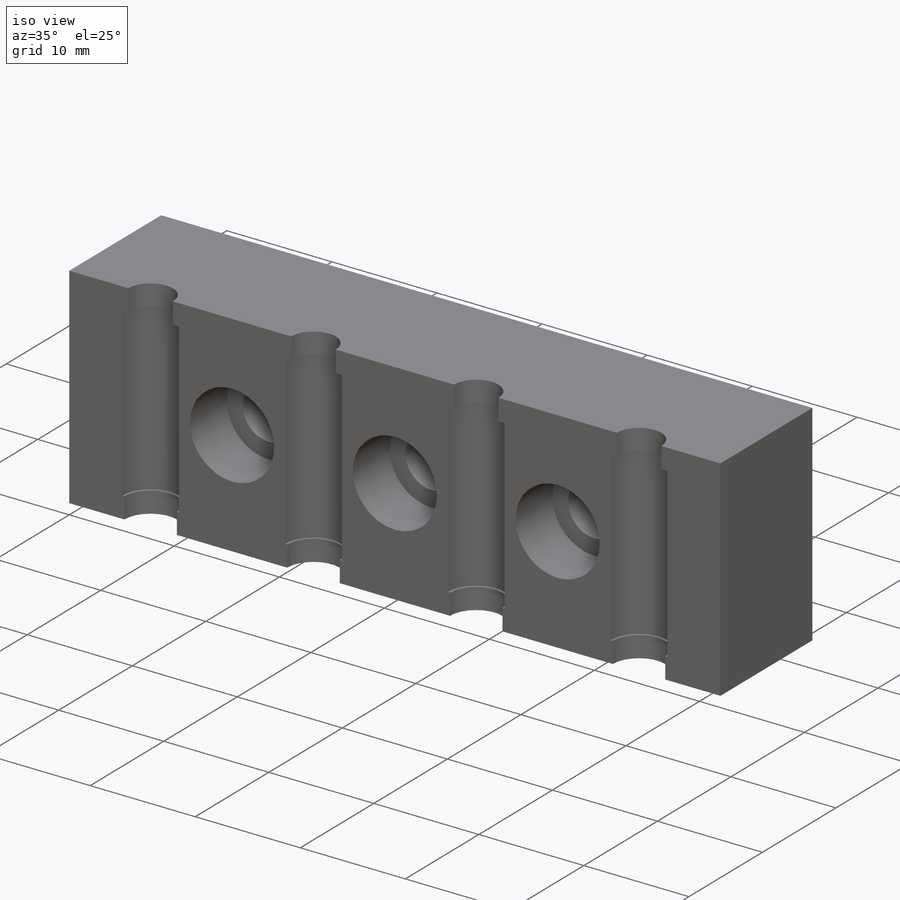
[diagram: iso view]
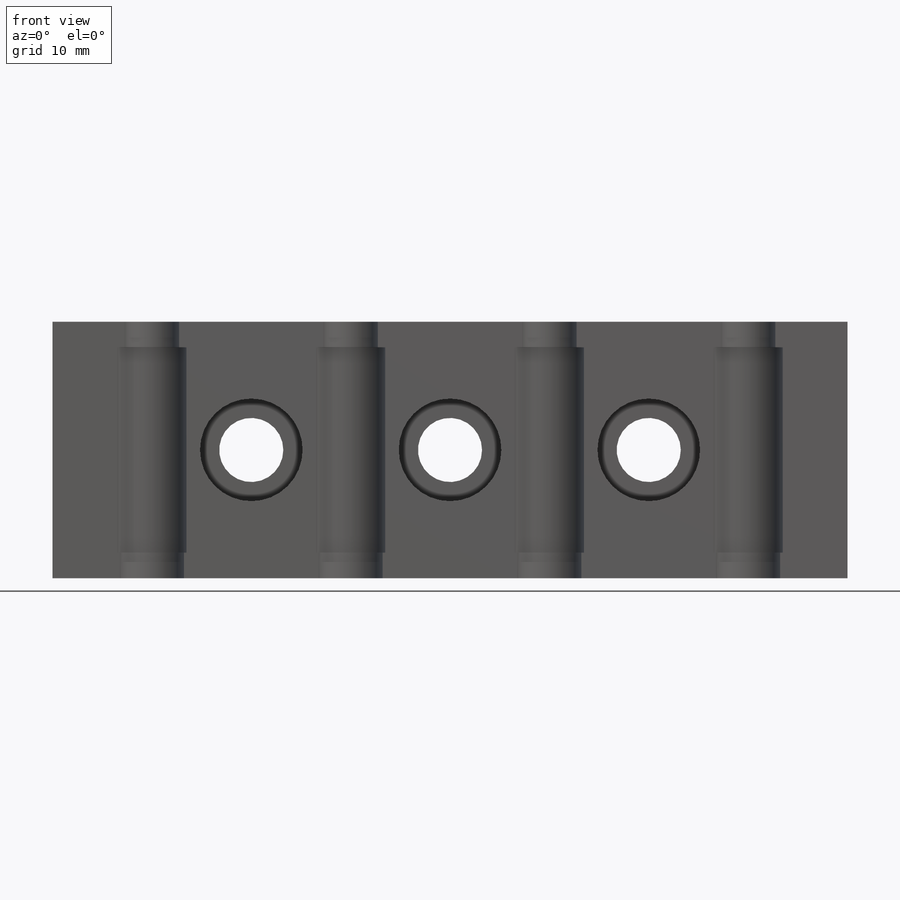
[diagram: front view]
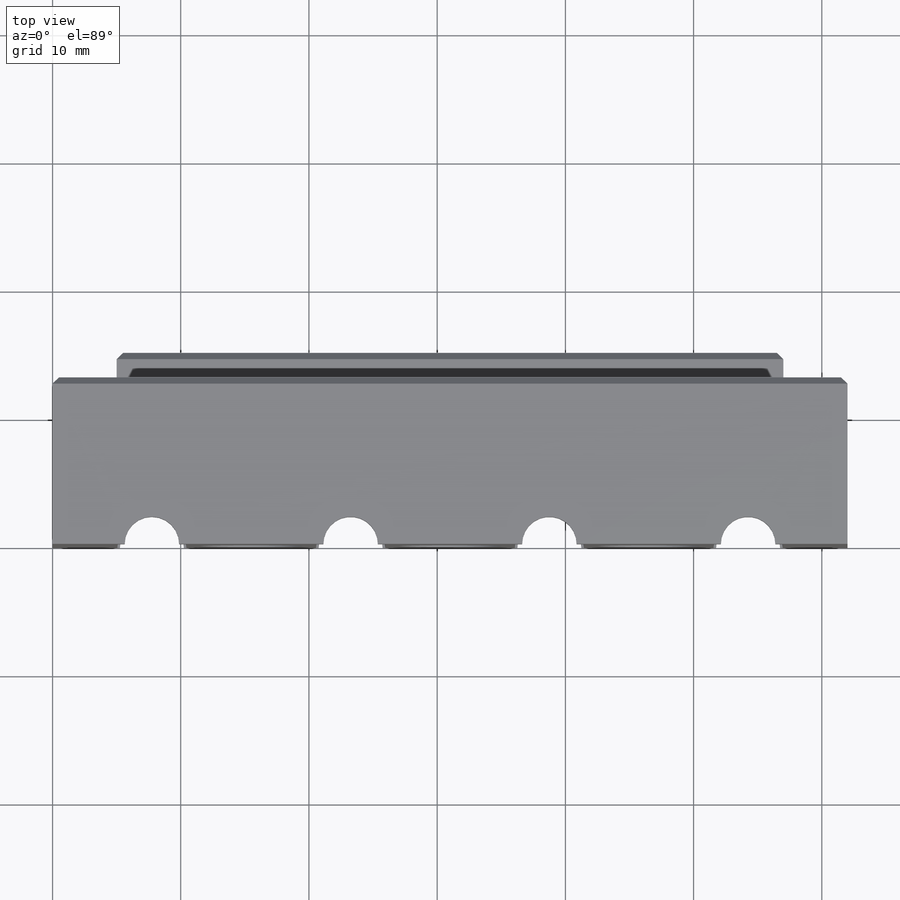
[diagram: top view]
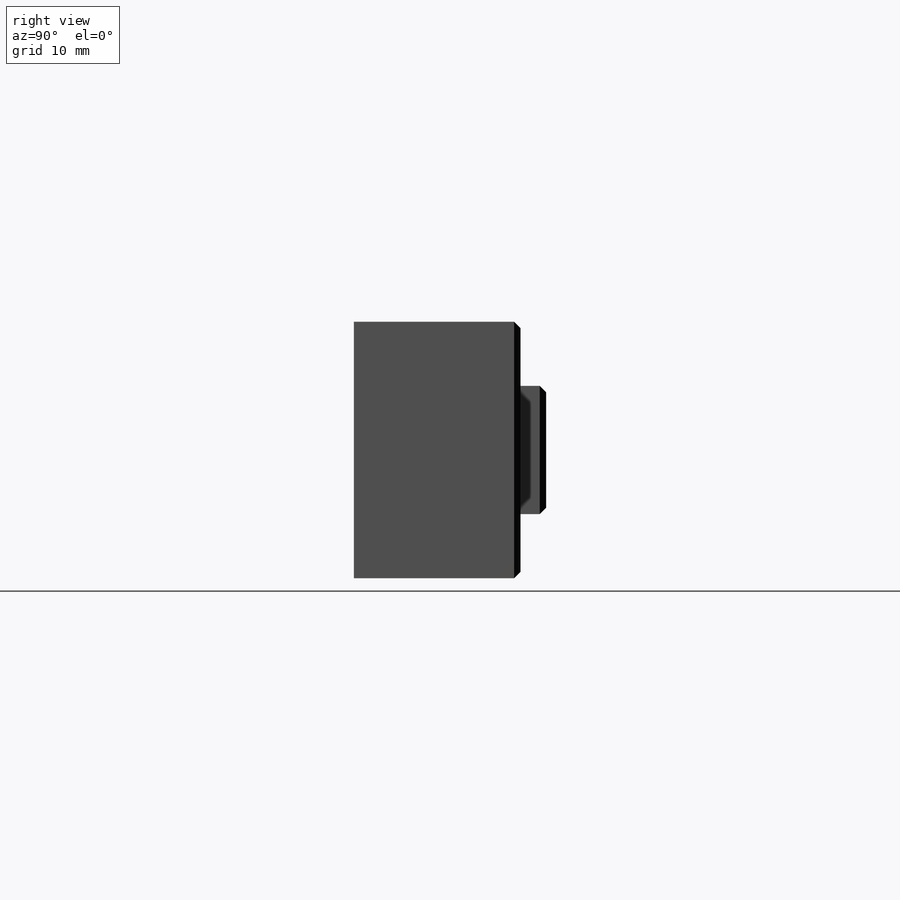
[diagram: right view]
SOLIDWORKS PART (.sldprt)
format: sldprt  version: not decoded by parser v0  size: 361,472 bytes
history: native  units: mm
features: sketch x7, cut_extrude x6, plane x4, material x1, extrude x1, chamfer x1 (+9 scaffold rows collapsed)
feature tree (29):
  scaffold x9  (default folders/planes/origin — collapsed)
  material  "Materiał <nieokreślony>"
  plane  "Plane1"
  plane  "Plane2"
  plane  "Plane3"
  sketch  "Szkic1"  dims[c1.D1=~26.378805mm c2.D1=~7.194027mm]
  extrude  "Wyciągnięcie1"  Depth=62mm
  sketch  "Szkic2"  dims[c1.D1=~1.533063mm c2.D1=5.4mm c2.D2=4.25mm c2.D3=4.25mm c3.D1=7.75mm]
  cut_extrude  "Wytnij-wyciągnięcie1"  [1 undecoded]
  plane  "Płaszczyzna1"  Offset=2mm
  sketch  "Szkic3"  dims[D1=5.4mm]
  cut_extrude  "Wytnij-wyciągnięcie2"  Depth=16mm
  sketch  "Szkic4"  dims[c1.D1=2.0mm c2.D1=5.0mm c2.D2=5.0mm]
  cut_extrude  "Wytnij-wyciągnięcie3"  [1 undecoded]
  chamfer  "Sfazowanie1"  Distance=0.5mm Angle=45deg
  sketch  "Szkic5"  dims[c1.D1=5.0mm c1.D2=5.0mm c1.D4=5.0mm c1.D5=5.0mm c1.D6=5.0mm c1.D7=5.0mm c1.D8=5.0mm c1.D9=5.0mm c2.D1=10.0mm c2.D3=31.0mm c2.D4=62.0mm c2.D5=15.5mm c2.D6=10.0mm c2.D8=15.5mm c2.D9=10.0mm]
  cut_extrude  "Wytnij-wyciągnięcie4"  [1 undecoded]
  sketch  "Szkic6"  dims[D1=8.0mm D2=8.0mm D3=8.0mm]
  cut_extrude  "Wytnij-wyciągnięcie5"  Depth=5mm
  sketch  "Szkic7"  dims[D1=5.0mm D2=15.5mm]
  cut_extrude  "Wytnij-wyciągnięcie6"  Depth=10mm
decode coverage: 12 of 15 modeling features carry decoded parameters
note: ~ marks probable driven/reference dimensions
note: 3 parameter values undecoded
summary: no parameter record found for 3 features
note: suppression state not decoded; provenance and decode notes live in map.json
